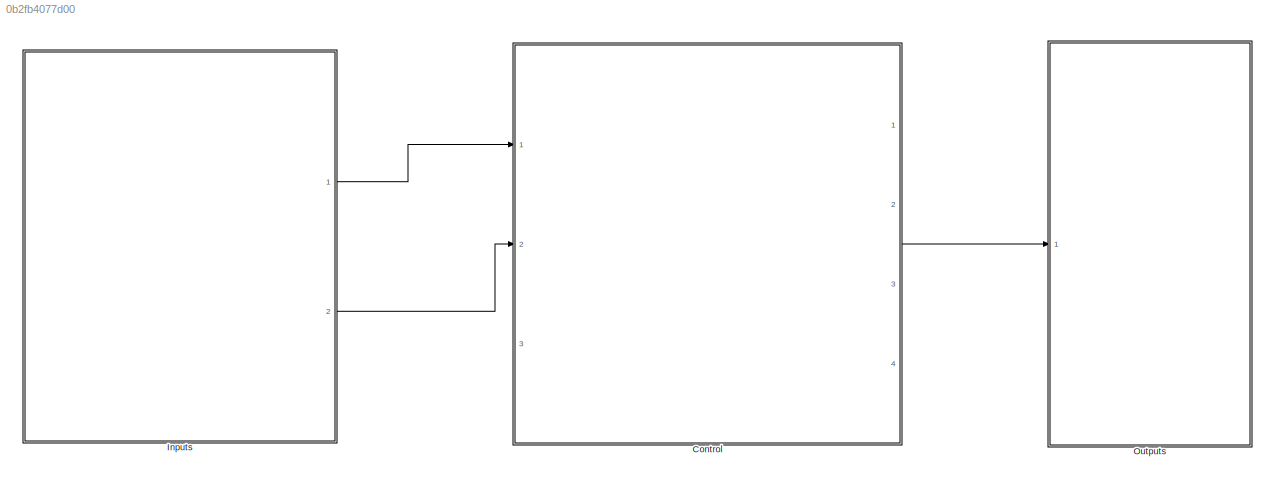
MODEL slx_0b2fb4077d00
KIND model
CONFIG AbsTol = auto
CONFIG EnableMultiTasking = off
CONFIG FixedStep = auto
CONFIG MaxStep = auto
CONFIG MinStep = auto
CONFIG RelTol = 1e-3
CONFIG SampleTimeConstraint = Unconstrained
CONFIG Solver = VariableStepAuto
CONFIG SolverName = VariableStepAuto
CONFIG StartTime = 0.0
CONFIG StopTime = 20
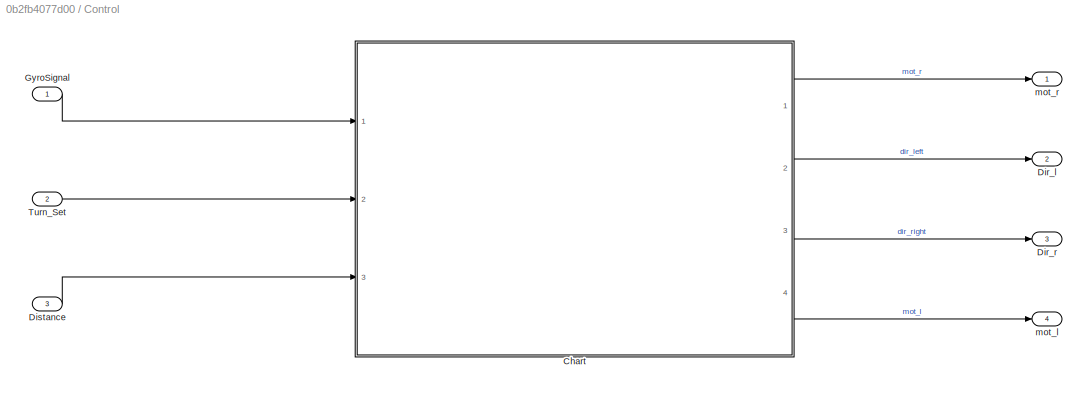
BLOCK [SubSystem] Control
  Ports = [3, 4]
  RequestExecContextInheritance = off
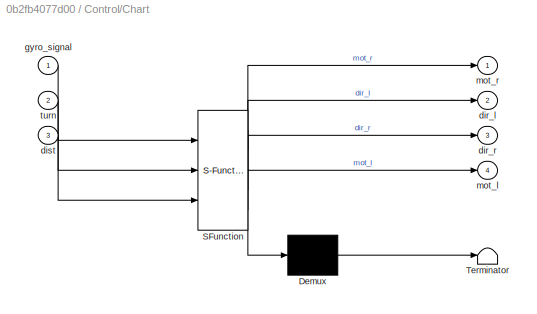
BLOCK [SubSystem] Control/Chart
  ErrorFcn = Stateflow.Translate.translate
  PermitHierarchicalResolution = ExplicitOnly
  Ports = [3, 4]
  RequestExecContextInheritance = off
  SFBlockType = Chart
  TreatAsAtomicUnit = on
BLOCK [Demux] Control/Chart/ Demux 
  Outputs = 1
  Ports = [1, 1]
BLOCK [S-Function] Control/Chart/ SFunction 
  EnableBusSupport = on
  FunctionName = sf_sfun
  PortCounts = [3 5]
  Ports = [3, 5]
  SFcnIsStateOwnerBlock = off
  SFunctionDeploymentMode = off
  Tag = Stateflow S-Function Motor_control_simulation 3
BLOCK [Terminator] Control/Chart/ Terminator 
BLOCK [Outport] Control/Chart/dir_l
  IconDisplay = Port number
  Port = 2
BLOCK [Outport] Control/Chart/dir_r
  IconDisplay = Port number
  Port = 3
BLOCK [Inport] Control/Chart/dist
  IconDisplay = Port number
  Port = 3
BLOCK [Inport] Control/Chart/gyro_signal
  IconDisplay = Port number
BLOCK [Outport] Control/Chart/mot_l
  IconDisplay = Port number
  Port = 4
BLOCK [Outport] Control/Chart/mot_r
  IconDisplay = Port number
BLOCK [Inport] Control/Chart/turn
  IconDisplay = Port number
  Port = 2
BLOCK [Outport] Control/Dir_l
  IconDisplay = Port number
  Port = 2
BLOCK [Outport] Control/Dir_r
  IconDisplay = Port number
  Port = 3
BLOCK [Inport] Control/Distance
  IconDisplay = Port number
  OutDataTypeStr = int16
  Port = 3
BLOCK [Inport] Control/GyroSignal
  IconDisplay = Port number
  OutDataTypeStr = int16
BLOCK [Inport] Control/Turn_Set
  IconDisplay = Port number
  OutDataTypeStr = int16
  Port = 2
BLOCK [Outport] Control/mot_l
  IconDisplay = Port number
  Port = 4
BLOCK [Outport] Control/mot_r
  IconDisplay = Port number
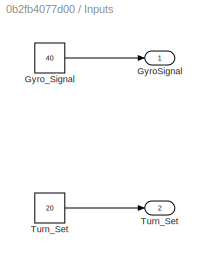
BLOCK [SubSystem] Inputs
  Ports = [0, 2]
  RequestExecContextInheritance = off
BLOCK [Outport] Inputs/GyroSignal
  IconDisplay = Port number
BLOCK [Constant] Inputs/Gyro_Signal
  OutDataTypeStr = int16
  Value = 40
BLOCK [Outport] Inputs/Turn_Set
  IconDisplay = Port number
  Port = 2
BLOCK [Constant] Inputs/Turn_Set 
  OutDataTypeStr = int16
  Value = 20
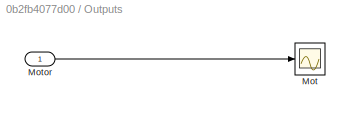
BLOCK [SubSystem] Outputs 
  Ports = [1]
  RequestExecContextInheritance = off
BLOCK [Scope] Outputs /Mot
  Floating = off
  NumInputPorts = 1
  Ports = [1]
  ScopeSpecificationString = Simulink.scopes.TimeScopeBlockCfg('CurrentConfiguration', extmgr.ConfigurationSet(extmgr.Configuration('Core','General UI',true),extmgr.Configuration('Core','Source UI',true),extmgr.Configuration('Sources','WiredSimulink',true),extmgr.Configuration('Visuals','Time Domain',true,'SerializedDisplays',{struct('MinYLimReal','0.9','MaxYLimReal','1.1','YLabelReal','','MinYLimMag','0.9','MaxYLimMag','1.1'...<+1295ch>
BLOCK [Inport] Outputs /Motor
  IconDisplay = Port number
LINE Control/Chart:1 -> Control/mot_r:1
LINE Control/Chart:2 -> Control/Dir_l:1
LINE Control/Chart:3 -> Control/Dir_r:1
LINE Control/Chart:4 -> Control/mot_l:1
LINE Control/Distance:1 -> Control/Chart:3
LINE Control/GyroSignal:1 -> Control/Chart:1
LINE Control/Turn_Set:1 -> Control/Chart:2
LINE Control:1 -> Outputs :1
LINE Inputs/Gyro_Signal:1 -> Inputs/GyroSignal:1
LINE Inputs/Turn_Set :1 -> Inputs/Turn_Set:1
LINE Inputs:1 -> Control:1
LINE Inputs:2 -> Control:2
LINE Outputs /Motor:1 -> Outputs /Mot:1
CHART Control/Chart states=5 transitions=13
  STATE_LABEL 'Turn_Left\nentry:\nmot_r = 1;\nmot_l = 1;\ndir_r=0;\ndir_l=1;\nduring:\nmot_r = 1;\nmot_l = 1;\ndir_r=0;\ndir_l=1;\nexit:\nmot_r = 0;\nmot_l = 0;\ndir_r=0;\ndir_l=0;'
  STATE_LABEL 'Turn_Right\nentry:\nmot_r = 1;\nmot_l = 1;\ndir_r=1;\ndir_l=0;\nduring:\nmot_r = 1;\nmot_l = 1;\ndir_r=1;\ndir_l=0;\nexit:\nmot_r = 0;\nmot_l = 0;\ndir_r=0;\ndir_l=0;'
  STATE_LABEL 'Idle\nentry:\nmot_r=0;\nmot_l=0;\nduring:\nmot_r=0;\nmot_l=0;\n'
  STATE_LABEL 'Backward\nentry:\nmot_r=1;\nmot_l=1;\ndir_r=1;\ndir_l=1;\nduring:\nmot_r=1;\nmot_l=1;\ndir_r=1;\ndir_l=1;\nexit:\nmot_r=0;\nmot_l=0;\ndir_r=0;\ndir_l=0;'
  STATE_LABEL 'Forward\nentry:\nmot_r=1;\nmot_l=1;\ndir_r=0;\ndir_l=0;\nduring:\nmot_r=1;\nmot_l=1;\ndir_r=0;\ndir_l=0;\nexit:\nmot_r=0;\nmot_l=0;\ndir_r=0;\ndir_l=0;\n'
